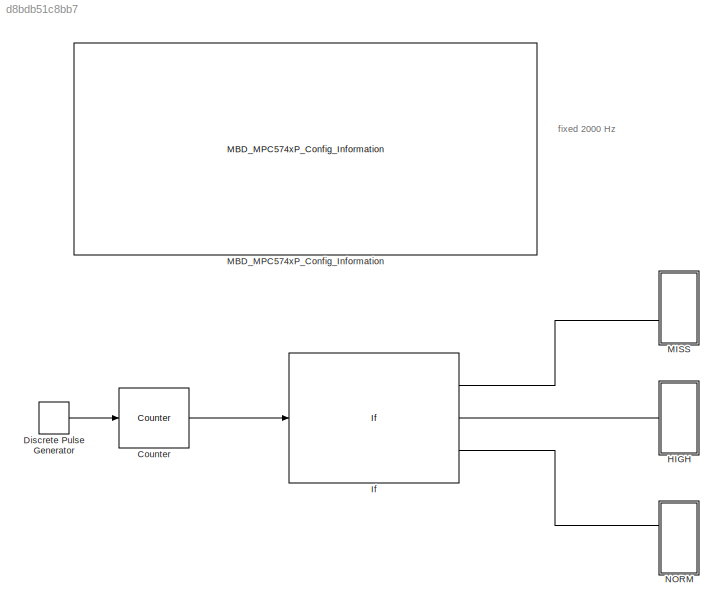
MODEL slx_d8bdb51c8bb7
KIND model
CONFIG AbsTol = auto
CONFIG EnableMultiTasking = off
CONFIG FixedStep = auto
CONFIG InitFcn = mbd_pnt_consistency_checks(bdroot(gcs));\nt = 1\nf = 1/t
CONFIG MaxStep = auto
CONFIG MinStep = auto
CONFIG RelTol = 1e-3
CONFIG SampleTimeConstraint = Unconstrained
CONFIG Solver = FixedStepDiscrete
CONFIG SolverName = FixedStepDiscrete
CONFIG StartTime = 0.0
CONFIG StopTime = 10.0
BLOCK [Reference] Counter  REF=dspswit3/Counter
  Ports = [1, 1]
  SourceBlock = dspswit3/Counter
  SourceProductBaseCode = DS
  SourceProductName = DSP System Toolbox
  SourceType = Counter
BLOCK [DiscretePulseGenerator] Discrete Pulse Generator
  Period = 100
  Ports = [0, 1]
  PulseWidth = 50
  SampleTime = t/10
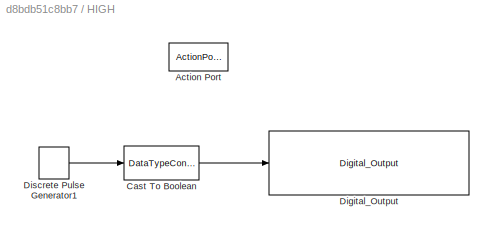
BLOCK [SubSystem] HIGH
  Ports = [0, 0, 0, 0, 0, 0, 0, 1]
  RequestExecContextInheritance = off
  TreatAsAtomicUnit = on
BLOCK [ActionPort] HIGH/Action Port
  ActionType = elseif
BLOCK [DataTypeConversion] HIGH/Cast To Boolean
  OutDataTypeStr = boolean
  RndMeth = Floor
  SaturateOnIntegerOverflow = off
BLOCK [Reference] HIGH/Digital_Output  REF=mbd_pnt_ec_toolbox/MPC574xP/Peripheral Interface Blocks/Digital_Output
  Ports = [1]
  SourceBlock = mbd_pnt_ec_toolbox/MPC574xP/Peripheral Interface Blocks/Digital_Output
  SourceProductName = Model Based Design Toolbox for MPC574xP
  SourceType = GPIO_PNT_Output
BLOCK [DiscretePulseGenerator] HIGH/Discrete Pulse Generator1
  Period = 100
  Ports = [0, 1]
  PulseWidth = 50
  SampleTime = t/10
BLOCK [If] If
  ElseIfExpressions = 10 < u1 < 20
  IfExpression = u1 <= 10
  Ports = [1, 3]
BLOCK [Reference] MBD_MPC574xP_Config_Information  REF=mbd_pnt_ec_toolbox/MPC574xP/MBD_MPC574xP_Config_Information
  Ports = []
  SourceBlock = mbd_pnt_ec_toolbox/MPC574xP/MBD_MPC574xP_Config_Information
  SourceProductName = Model Based Design Toolbox for MPC574xP
  SourceType = MBDTBX_EC_PNT
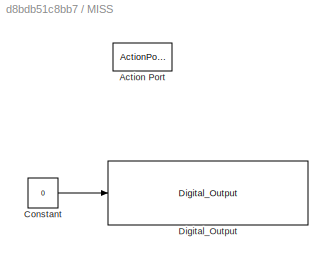
BLOCK [SubSystem] MISS
  Ports = [0, 0, 0, 0, 0, 0, 0, 1]
  RequestExecContextInheritance = off
  TreatAsAtomicUnit = on
BLOCK [ActionPort] MISS/Action Port
  ActionType = then
BLOCK [Constant] MISS/Constant
  OutDataTypeStr = boolean
  Value = 0
BLOCK [Reference] MISS/Digital_Output  REF=mbd_pnt_ec_toolbox/MPC574xP/Peripheral Interface Blocks/Digital_Output
  Ports = [1]
  SourceBlock = mbd_pnt_ec_toolbox/MPC574xP/Peripheral Interface Blocks/Digital_Output
  SourceProductName = Model Based Design Toolbox for MPC574xP
  SourceType = GPIO_PNT_Output
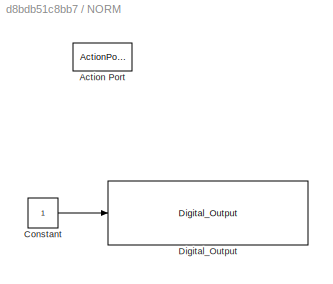
BLOCK [SubSystem] NORM
  Ports = [0, 0, 0, 0, 0, 0, 0, 1]
  RequestExecContextInheritance = off
  TreatAsAtomicUnit = on
BLOCK [ActionPort] NORM/Action Port
  ActionType = else
BLOCK [Constant] NORM/Constant
  OutDataTypeStr = boolean
BLOCK [Reference] NORM/Digital_Output  REF=mbd_pnt_ec_toolbox/MPC574xP/Peripheral Interface Blocks/Digital_Output
  Ports = [1]
  SourceBlock = mbd_pnt_ec_toolbox/MPC574xP/Peripheral Interface Blocks/Digital_Output
  SourceProductName = Model Based Design Toolbox for MPC574xP
  SourceType = GPIO_PNT_Output
ANNOTATION (root): fixed 2000 Hz
LINE Counter:1 -> If:1
LINE Discrete Pulse Generator:1 -> Counter:1
LINE HIGH/Cast To Boolean:1 -> HIGH/Digital_Output:1
LINE HIGH/Discrete Pulse Generator1:1 -> HIGH/Cast To Boolean:1
LINE If:1 -> MISS:ifaction
LINE If:2 -> HIGH:ifaction
LINE If:3 -> NORM:ifaction
LINE MISS/Constant:1 -> MISS/Digital_Output:1
LINE NORM/Constant:1 -> NORM/Digital_Output:1
